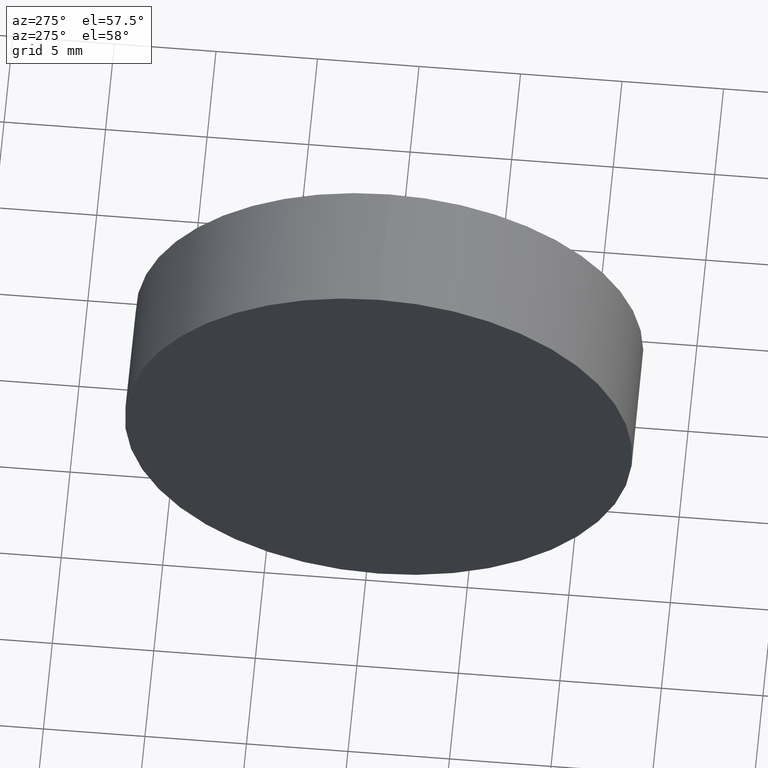
[diagram: clean part render]
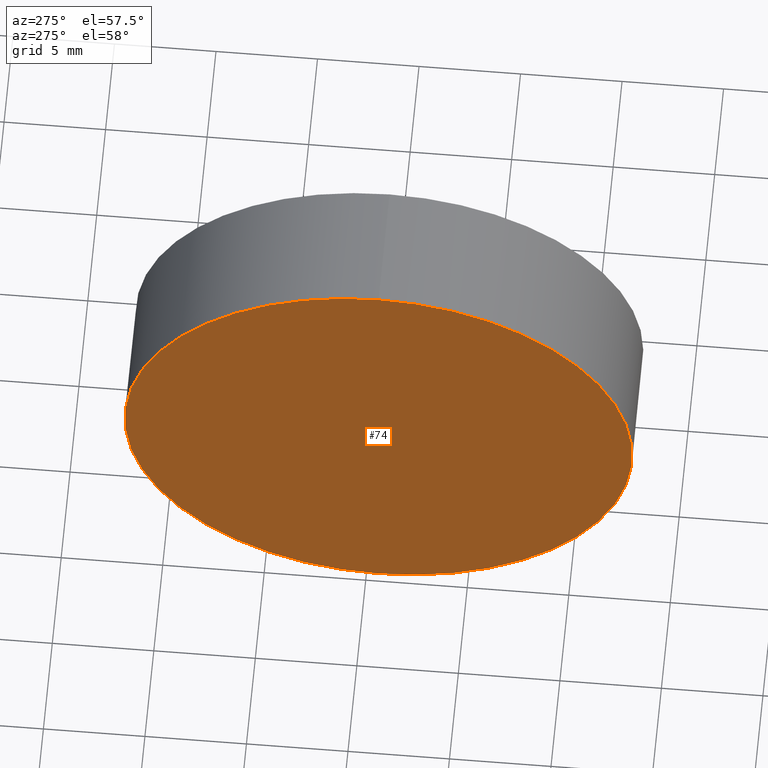
[diagram: same view with one face highlighted and labeled with its STEP entity id]
A machine part, auxiliary view. The second image highlights one B-rep face of the part: STEP entity #74.
In plain terms, the highlighted planar face has unit normal (1, 0, 0).
Its self-contained STEP definition (entity closure, byte-faithful):
#1 = CARTESIAN_POINT ( 'NONE',  ( 115.0926555349195200, 69.37802112337243400, -12.49999999999999600 ) ) ;
#13 = VERTEX_POINT ( 'NONE', #103 ) ;
#19 = EDGE_CURVE ( 'NONE', #94, #13, #79, .T. ) ;
#24 = DIRECTION ( 'NONE',  ( -1.000000000000000000, -0.0000000000000000000, -0.0000000000000000000 ) ) ;
#27 = CARTESIAN_POINT ( 'NONE',  ( 115.0926555349195200, 69.37802112337243400, 0.0000000000000000000 ) ) ;
#41 = EDGE_LOOP ( 'NONE', ( #173, #102 ) ) ;
#51 = DIRECTION ( 'NONE',  ( 0.0000000000000000000, 0.0000000000000000000, -1.000000000000000000 ) ) ;
#58 = EDGE_CURVE ( 'NONE', #13, #94, #181, .T. ) ;
#63 = AXIS2_PLACEMENT_3D ( 'NONE', #92, #93, #104 ) ;
#74 = ADVANCED_FACE ( 'NONE', ( #184 ), #164, .F. ) ;
#79 = CIRCLE ( 'NONE', #63, 12.49999999999999600 ) ;
#91 = CARTESIAN_POINT ( 'NONE',  ( 115.0926555349195200, 69.37802112337243400, 0.0000000000000000000 ) ) ;
#92 = CARTESIAN_POINT ( 'NONE',  ( 115.0926555349195200, 69.37802112337243400, 0.0000000000000000000 ) ) ;
#93 = DIRECTION ( 'NONE',  ( -1.000000000000000000, -0.0000000000000000000, -0.0000000000000000000 ) ) ;
#94 = VERTEX_POINT ( 'NONE', #1 ) ;
#102 = ORIENTED_EDGE ( 'NONE', *, *, #19, .T. ) ;
#103 = CARTESIAN_POINT ( 'NONE',  ( 115.0926555349195200, 69.37802112337243400, 12.49999999999999600 ) ) ;
#104 = DIRECTION ( 'NONE',  ( 0.0000000000000000000, 0.0000000000000000000, 1.000000000000000000 ) ) ;
#118 = DIRECTION ( 'NONE',  ( 0.0000000000000000000, 0.0000000000000000000, 1.000000000000000000 ) ) ;
#120 = DIRECTION ( 'NONE',  ( 1.000000000000000000, 0.0000000000000000000, 0.0000000000000000000 ) ) ;
#140 = AXIS2_PLACEMENT_3D ( 'NONE', #91, #120, #51 ) ;
#164 = PLANE ( 'NONE',  #140 ) ;
#173 = ORIENTED_EDGE ( 'NONE', *, *, #58, .T. ) ;
#176 = AXIS2_PLACEMENT_3D ( 'NONE', #27, #24, #118 ) ;
#181 = CIRCLE ( 'NONE', #176, 12.49999999999999600 ) ;
#184 = FACE_OUTER_BOUND ( 'NONE', #41, .T. ) ;